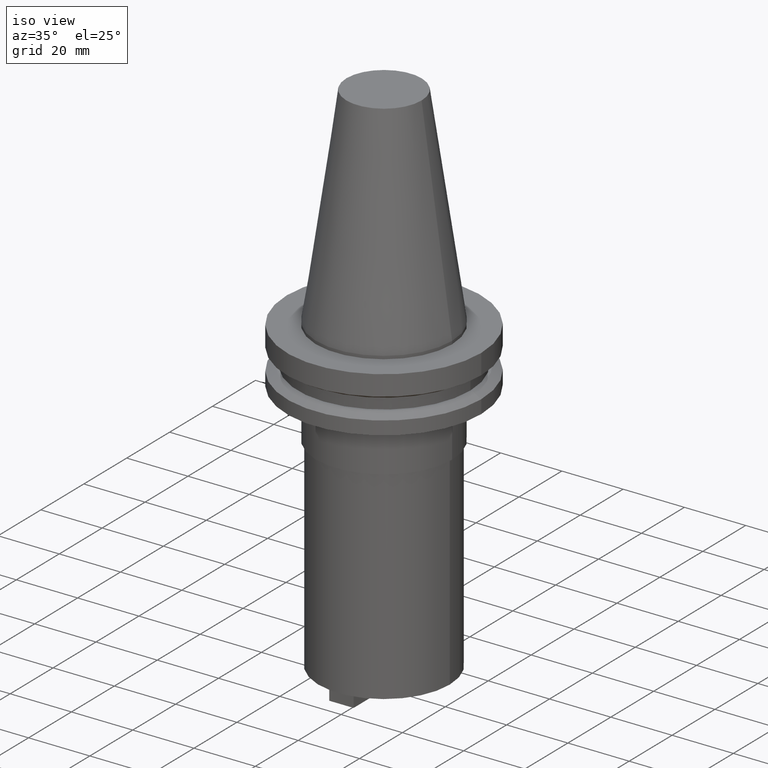
[diagram: clean part render]
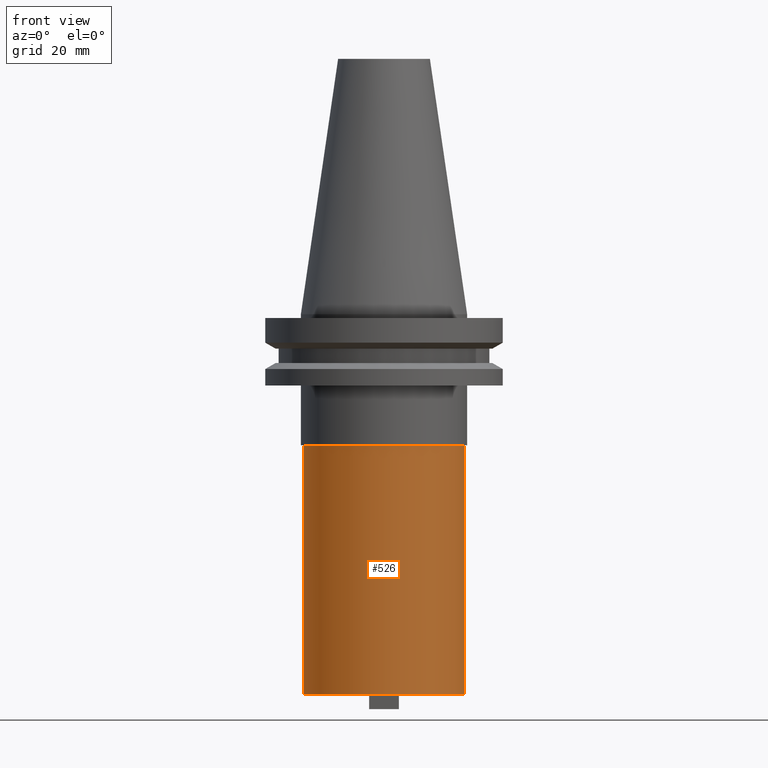
[diagram: tour spotlight — one face highlighted and labeled with its STEP entity id]
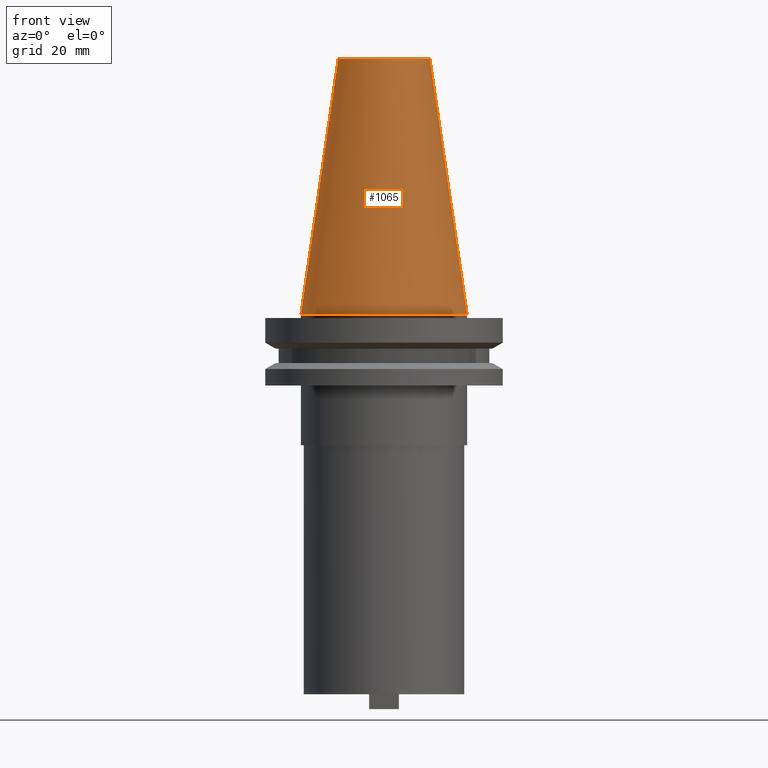
[diagram: tour spotlight — one face highlighted and labeled with its STEP entity id]
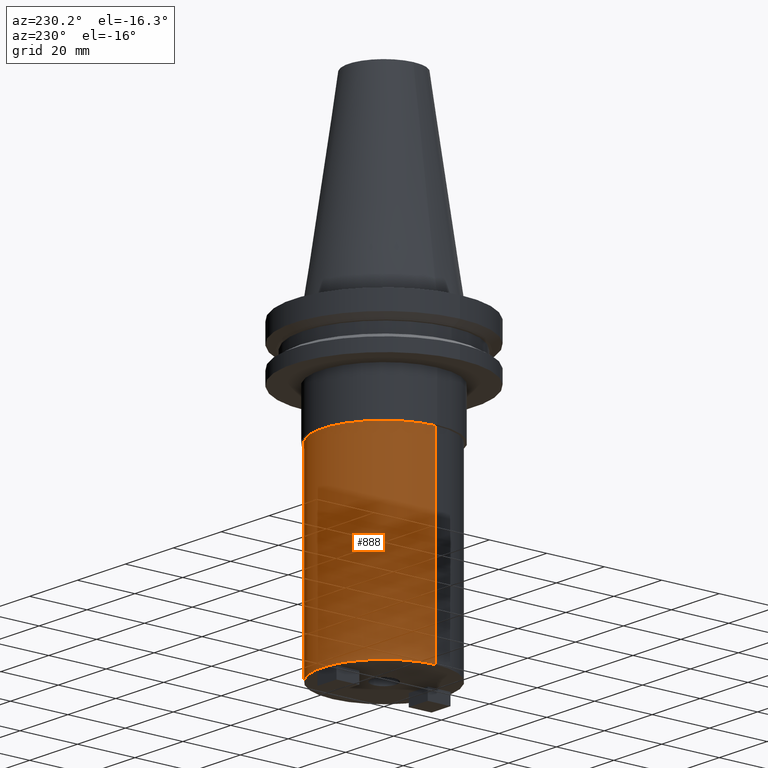
[diagram: tour spotlight — one face highlighted and labeled with its STEP entity id]
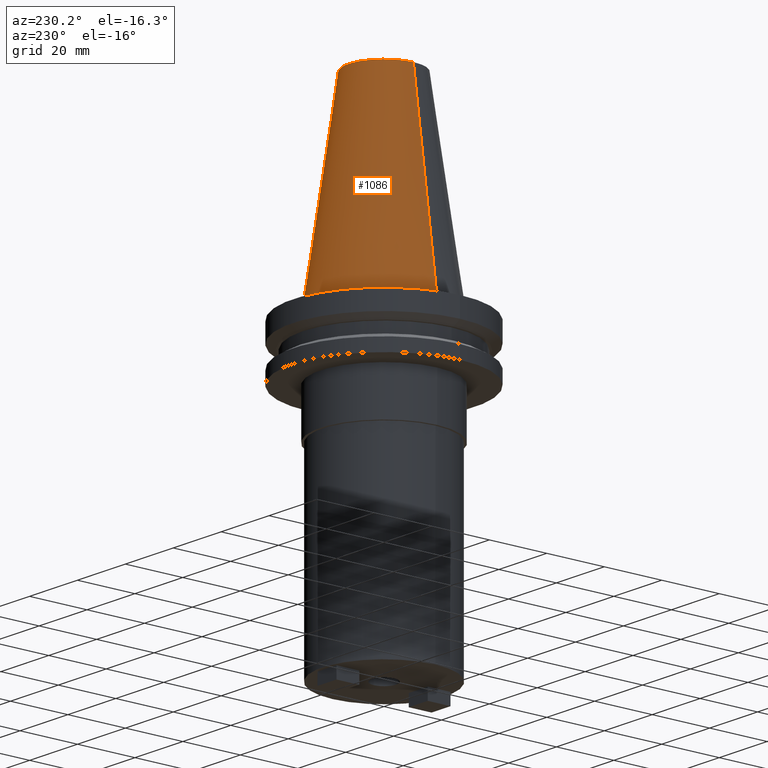
[diagram: tour spotlight — one face highlighted and labeled with its STEP entity id]
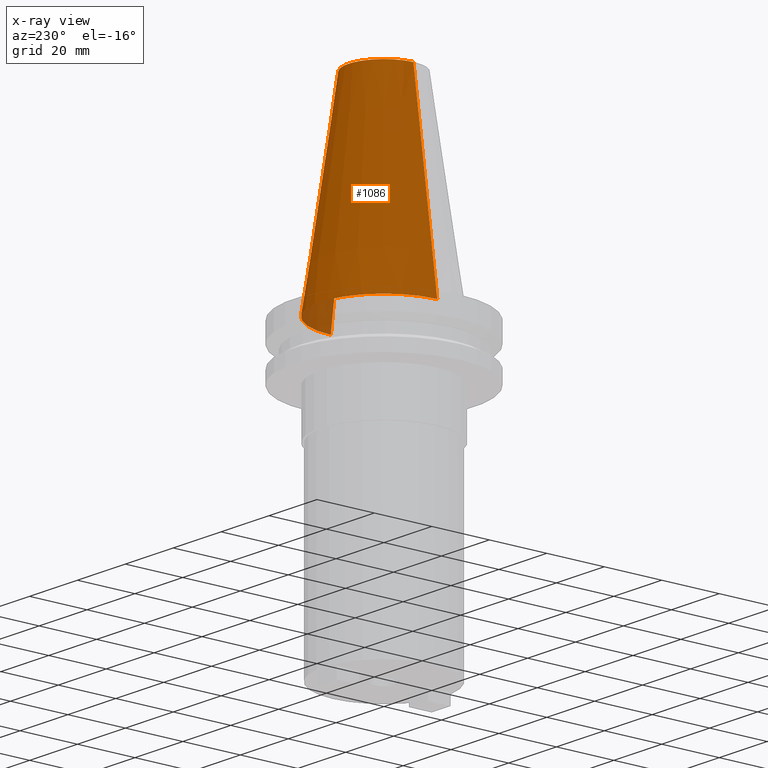
[diagram: x-ray of the same camera — body ghosted, this tour face saturated]
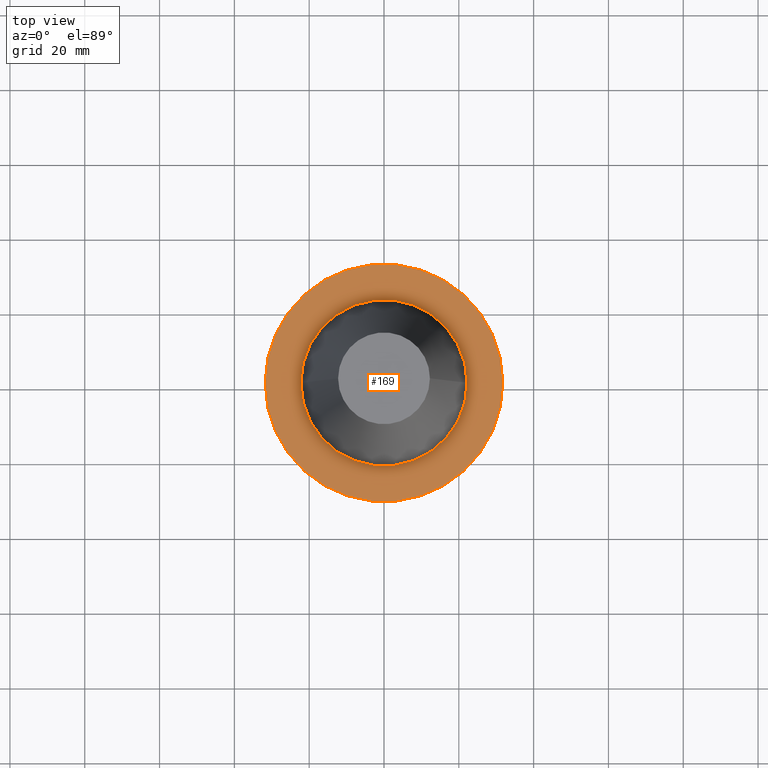
[diagram: tour spotlight — one face highlighted and labeled with its STEP entity id]
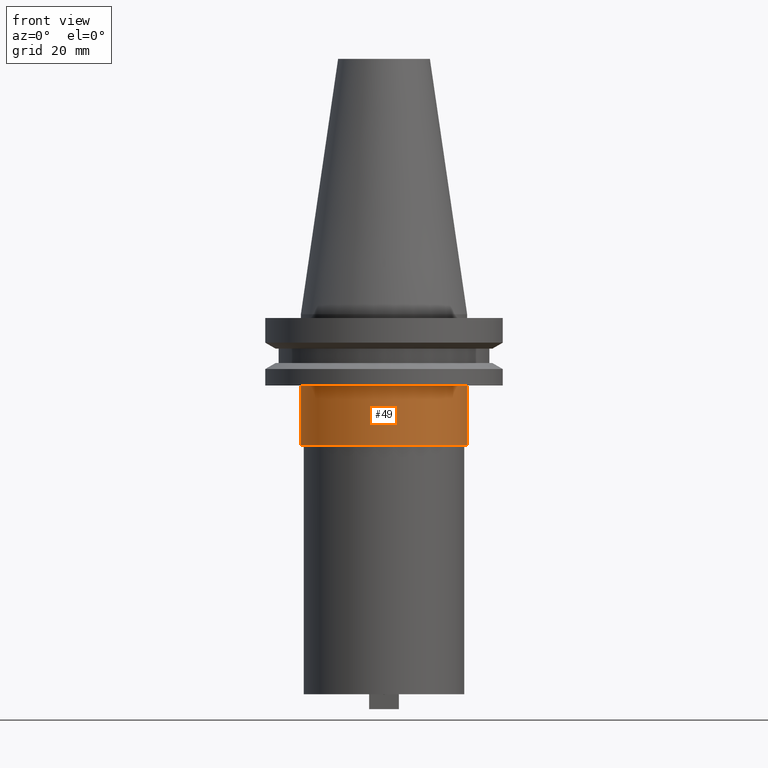
[diagram: tour spotlight — one face highlighted and labeled with its STEP entity id]
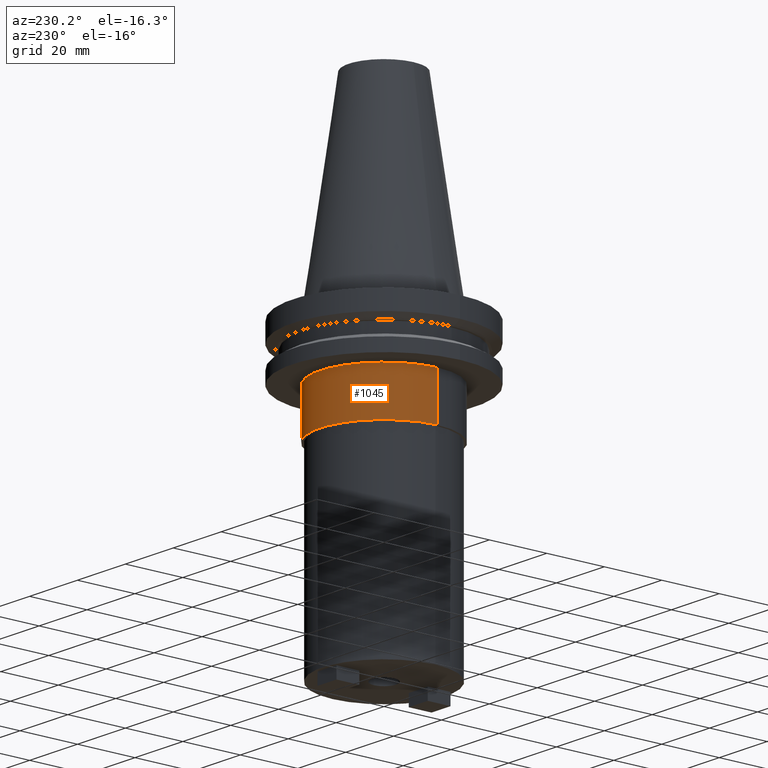
[diagram: tour spotlight — one face highlighted and labeled with its STEP entity id]
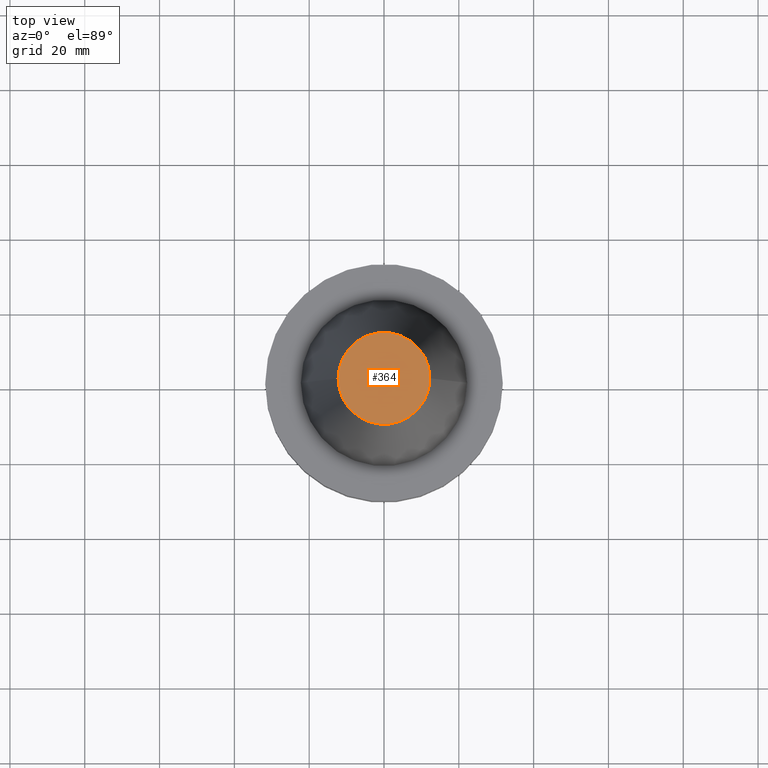
[diagram: tour spotlight — one face highlighted and labeled with its STEP entity id]
A machine part: a face-by-face anatomy tour. The part has 38 B-rep faces; the first image is the clean iso view, then the 8 largest visible faces are spotlighted one at a time (largest first), each with its STEP entity span.

Face 1 — front view, entity #526. In plain terms, the highlighted cylindrical surface (partial cylindrical patch) has radius 21.45 mm, axis along (-0, -0, 1).
Definition (entity closure, byte-faithful):
#9 = ORIENTED_EDGE ( 'NONE', *, *, #193, .T. ) ;
#55 = AXIS2_PLACEMENT_3D ( 'NONE', #59, #805, #411 ) ;
#59 = CARTESIAN_POINT ( 'NONE',  ( 0.000000000000000000, 0.000000000000000000, -101.5999999999999943 ) ) ;
#102 = ORIENTED_EDGE ( 'NONE', *, *, #778, .T. ) ;
#122 = ORIENTED_EDGE ( 'NONE', *, *, #743, .F. ) ;
#168 = CARTESIAN_POINT ( 'NONE',  ( 0.000000000000000000, 0.000000000000000000, -35.04999999999999716 ) ) ;
#193 = EDGE_CURVE ( 'NONE', #362, #834, #612, .T. ) ;
#292 = FACE_OUTER_BOUND ( 'NONE', #997, .T. ) ;
#323 = CARTESIAN_POINT ( 'NONE',  ( -21.44999999999999929, 2.626867384171072557E-15, -101.5999999999999943 ) ) ;
#362 = VERTEX_POINT ( 'NONE', #938 ) ;
#411 = DIRECTION ( 'NONE',  ( 1.000000000000000000, 0.000000000000000000, 0.000000000000000000 ) ) ;
#492 = LINE ( 'NONE', #893, #984 ) ;
#526 = ADVANCED_FACE ( 'NONE', ( #292 ), #552, .T. ) ;
#552 = CYLINDRICAL_SURFACE ( 'NONE', #614, 21.44999999999999929 ) ;
#597 = VERTEX_POINT ( 'NONE', #323 ) ;
#612 = CIRCLE ( 'NONE', #856, 21.44999999999999929 ) ;
#614 = AXIS2_PLACEMENT_3D ( 'NONE', #619, #688, #958 ) ;
#619 = CARTESIAN_POINT ( 'NONE',  ( 0.000000000000000000, 0.000000000000000000, 0.000000000000000000 ) ) ;
#645 = DIRECTION ( 'NONE',  ( 0.000000000000000000, 0.000000000000000000, -1.000000000000000000 ) ) ;
#679 = ORIENTED_EDGE ( 'NONE', *, *, #695, .T. ) ;
#685 = VERTEX_POINT ( 'NONE', #1001 ) ;
#688 = DIRECTION ( 'NONE',  ( -0.000000000000000000, -0.000000000000000000, 1.000000000000000000 ) ) ;
#695 = EDGE_CURVE ( 'NONE', #685, #362, #713, .T. ) ;
#708 = CIRCLE ( 'NONE', #55, 21.44999999999999929 ) ;
#713 = LINE ( 'NONE', #1075, #839 ) ;
#743 = EDGE_CURVE ( 'NONE', #597, #834, #492, .T. ) ;
#778 = EDGE_CURVE ( 'NONE', #597, #685, #708, .T. ) ;
#805 = DIRECTION ( 'NONE',  ( -0.000000000000000000, -0.000000000000000000, 1.000000000000000000 ) ) ;
#834 = VERTEX_POINT ( 'NONE', #1008 ) ;
#839 = VECTOR ( 'NONE', #1063, 1000.000000000000000 ) ;
#856 = AXIS2_PLACEMENT_3D ( 'NONE', #168, #645, #898 ) ;
#893 = CARTESIAN_POINT ( 'NONE',  ( -21.44999999999999929, 2.626867384171072557E-15, 0.000000000000000000 ) ) ;
#898 = DIRECTION ( 'NONE',  ( 1.000000000000000000, 0.000000000000000000, 0.000000000000000000 ) ) ;
#938 = CARTESIAN_POINT ( 'NONE',  ( 21.44999999999999929, 0.000000000000000000, -35.04999999999999716 ) ) ;
#958 = DIRECTION ( 'NONE',  ( 1.000000000000000000, 0.000000000000000000, 0.000000000000000000 ) ) ;
#984 = VECTOR ( 'NONE', #1066, 1000.000000000000000 ) ;
#997 = EDGE_LOOP ( 'NONE', ( #122, #102, #679, #9 ) ) ;
#1001 = CARTESIAN_POINT ( 'NONE',  ( 21.44999999999999929, 0.000000000000000000, -101.5999999999999943 ) ) ;
#1008 = CARTESIAN_POINT ( 'NONE',  ( -21.44999999999999929, 2.626867384171072557E-15, -35.04999999999999716 ) ) ;
#1063 = DIRECTION ( 'NONE',  ( -0.000000000000000000, -0.000000000000000000, 1.000000000000000000 ) ) ;
#1066 = DIRECTION ( 'NONE',  ( -0.000000000000000000, -0.000000000000000000, 1.000000000000000000 ) ) ;
#1075 = CARTESIAN_POINT ( 'NONE',  ( 21.44999999999999929, 0.000000000000000000, 0.000000000000000000 ) ) ;

Face 2 — front view, entity #1065. In plain terms, the highlighted conical surface has half-angle 8.297 deg.
Definition (entity closure, byte-faithful):
#114 = CIRCLE ( 'NONE', #138, 22.22500000000000142 ) ;
#137 = DIRECTION ( 'NONE',  ( -0.1443082272672999711, 0.000000000000000000, -0.9895327864921755756 ) ) ;
#138 = AXIS2_PLACEMENT_3D ( 'NONE', #994, #1059, #301 ) ;
#141 = CARTESIAN_POINT ( 'NONE',  ( 22.22500000000000142, 2.721777511104992849E-15, 0.000000000000000000 ) ) ;
#147 = LINE ( 'NONE', #401, #353 ) ;
#166 = VERTEX_POINT ( 'NONE', #141 ) ;
#228 = EDGE_CURVE ( 'NONE', #513, #1019, #298, .T. ) ;
#298 = CIRCLE ( 'NONE', #427, 12.27178102086201150 ) ;
#301 = DIRECTION ( 'NONE',  ( 1.000000000000000000, 0.000000000000000000, 0.000000000000000000 ) ) ;
#322 = EDGE_LOOP ( 'NONE', ( #486, #451, #687, #1050 ) ) ;
#353 = VECTOR ( 'NONE', #821, 999.9999999999998863 ) ;
#380 = CARTESIAN_POINT ( 'NONE',  ( 12.27178102086201150, 2.112318622904291439E-15, 68.25000000000000000 ) ) ;
#401 = CARTESIAN_POINT ( 'NONE',  ( 22.22500000000000142, 2.721777511104992849E-15, 0.000000000000000000 ) ) ;
#427 = AXIS2_PLACEMENT_3D ( 'NONE', #1076, #748, #579 ) ;
#437 = EDGE_CURVE ( 'NONE', #513, #998, #632, .T. ) ;
#451 = ORIENTED_EDGE ( 'NONE', *, *, #228, .F. ) ;
#486 = ORIENTED_EDGE ( 'NONE', *, *, #768, .F. ) ;
#513 = VERTEX_POINT ( 'NONE', #955 ) ;
#579 = DIRECTION ( 'NONE',  ( 1.000000000000000000, 0.000000000000000000, 0.000000000000000000 ) ) ;
#632 = LINE ( 'NONE', #1058, #1073 ) ;
#635 = DIRECTION ( 'NONE',  ( 0.000000000000000000, 0.000000000000000000, -1.000000000000000000 ) ) ;
#646 = FACE_OUTER_BOUND ( 'NONE', #322, .T. ) ;
#687 = ORIENTED_EDGE ( 'NONE', *, *, #437, .T. ) ;
#748 = DIRECTION ( 'NONE',  ( -0.000000000000000000, -0.000000000000000000, 1.000000000000000000 ) ) ;
#768 = EDGE_CURVE ( 'NONE', #1019, #166, #147, .T. ) ;
#790 = EDGE_CURVE ( 'NONE', #998, #166, #114, .T. ) ;
#821 = DIRECTION ( 'NONE',  ( 0.1443082272672999711, 1.767266086135276757E-17, -0.9895327864921755756 ) ) ;
#876 = CARTESIAN_POINT ( 'NONE',  ( -22.22500000000000142, 0.000000000000000000, 0.000000000000000000 ) ) ;
#915 = CARTESIAN_POINT ( 'NONE',  ( 0.000000000000000000, 0.000000000000000000, 0.000000000000000000 ) ) ;
#953 = AXIS2_PLACEMENT_3D ( 'NONE', #915, #635, #989 ) ;
#955 = CARTESIAN_POINT ( 'NONE',  ( -12.27178102086201150, 0.000000000000000000, 68.25000000000000000 ) ) ;
#989 = DIRECTION ( 'NONE',  ( -1.000000000000000000, 0.000000000000000000, 0.000000000000000000 ) ) ;
#994 = CARTESIAN_POINT ( 'NONE',  ( 0.000000000000000000, 0.000000000000000000, 0.000000000000000000 ) ) ;
#998 = VERTEX_POINT ( 'NONE', #876 ) ;
#1019 = VERTEX_POINT ( 'NONE', #380 ) ;
#1042 = CONICAL_SURFACE ( 'NONE', #953, 22.22500000000000142, 0.1448138465474119174 ) ;
#1050 = ORIENTED_EDGE ( 'NONE', *, *, #790, .T. ) ;
#1058 = CARTESIAN_POINT ( 'NONE',  ( -22.22500000000000142, 0.000000000000000000, 0.000000000000000000 ) ) ;
#1059 = DIRECTION ( 'NONE',  ( -0.000000000000000000, -0.000000000000000000, 1.000000000000000000 ) ) ;
#1065 = ADVANCED_FACE ( 'NONE', ( #646 ), #1042, .T. ) ;
#1073 = VECTOR ( 'NONE', #137, 999.9999999999998863 ) ;
#1076 = CARTESIAN_POINT ( 'NONE',  ( 0.000000000000000000, 0.000000000000000000, 68.25000000000000000 ) ) ;

Face 3 — auxiliary view, entity #888. In plain terms, the highlighted cylindrical surface (partial cylindrical patch) has radius 21.45 mm, axis along (-0, -0, 1).
Definition (entity closure, byte-faithful):
#39 = DIRECTION ( 'NONE',  ( 1.000000000000000000, 0.000000000000000000, 0.000000000000000000 ) ) ;
#69 = EDGE_CURVE ( 'NONE', #685, #597, #140, .T. ) ;
#74 = ORIENTED_EDGE ( 'NONE', *, *, #171, .T. ) ;
#140 = CIRCLE ( 'NONE', #929, 21.44999999999999929 ) ;
#155 = DIRECTION ( 'NONE',  ( -0.000000000000000000, -0.000000000000000000, 1.000000000000000000 ) ) ;
#165 = ORIENTED_EDGE ( 'NONE', *, *, #695, .F. ) ;
#171 = EDGE_CURVE ( 'NONE', #834, #362, #270, .T. ) ;
#185 = ORIENTED_EDGE ( 'NONE', *, *, #743, .T. ) ;
#270 = CIRCLE ( 'NONE', #578, 21.44999999999999929 ) ;
#317 = CARTESIAN_POINT ( 'NONE',  ( 0.000000000000000000, 0.000000000000000000, -35.04999999999999716 ) ) ;
#323 = CARTESIAN_POINT ( 'NONE',  ( -21.44999999999999929, 2.626867384171072557E-15, -101.5999999999999943 ) ) ;
#362 = VERTEX_POINT ( 'NONE', #938 ) ;
#435 = FACE_OUTER_BOUND ( 'NONE', #872, .T. ) ;
#463 = DIRECTION ( 'NONE',  ( -0.000000000000000000, -0.000000000000000000, 1.000000000000000000 ) ) ;
#489 = DIRECTION ( 'NONE',  ( 1.000000000000000000, 0.000000000000000000, 0.000000000000000000 ) ) ;
#492 = LINE ( 'NONE', #893, #984 ) ;
#557 = AXIS2_PLACEMENT_3D ( 'NONE', #1023, #155, #489 ) ;
#578 = AXIS2_PLACEMENT_3D ( 'NONE', #317, #988, #903 ) ;
#597 = VERTEX_POINT ( 'NONE', #323 ) ;
#603 = ORIENTED_EDGE ( 'NONE', *, *, #69, .T. ) ;
#620 = CARTESIAN_POINT ( 'NONE',  ( 0.000000000000000000, 0.000000000000000000, -101.5999999999999943 ) ) ;
#685 = VERTEX_POINT ( 'NONE', #1001 ) ;
#695 = EDGE_CURVE ( 'NONE', #685, #362, #713, .T. ) ;
#713 = LINE ( 'NONE', #1075, #839 ) ;
#743 = EDGE_CURVE ( 'NONE', #597, #834, #492, .T. ) ;
#834 = VERTEX_POINT ( 'NONE', #1008 ) ;
#839 = VECTOR ( 'NONE', #1063, 1000.000000000000000 ) ;
#872 = EDGE_LOOP ( 'NONE', ( #603, #185, #74, #165 ) ) ;
#888 = ADVANCED_FACE ( 'NONE', ( #435 ), #999, .T. ) ;
#893 = CARTESIAN_POINT ( 'NONE',  ( -21.44999999999999929, 2.626867384171072557E-15, 0.000000000000000000 ) ) ;
#903 = DIRECTION ( 'NONE',  ( 1.000000000000000000, 0.000000000000000000, 0.000000000000000000 ) ) ;
#929 = AXIS2_PLACEMENT_3D ( 'NONE', #620, #463, #39 ) ;
#938 = CARTESIAN_POINT ( 'NONE',  ( 21.44999999999999929, 0.000000000000000000, -35.04999999999999716 ) ) ;
#984 = VECTOR ( 'NONE', #1066, 1000.000000000000000 ) ;
#988 = DIRECTION ( 'NONE',  ( 0.000000000000000000, 0.000000000000000000, -1.000000000000000000 ) ) ;
#999 = CYLINDRICAL_SURFACE ( 'NONE', #557, 21.44999999999999929 ) ;
#1001 = CARTESIAN_POINT ( 'NONE',  ( 21.44999999999999929, 0.000000000000000000, -101.5999999999999943 ) ) ;
#1008 = CARTESIAN_POINT ( 'NONE',  ( -21.44999999999999929, 2.626867384171072557E-15, -35.04999999999999716 ) ) ;
#1023 = CARTESIAN_POINT ( 'NONE',  ( 0.000000000000000000, 0.000000000000000000, 0.000000000000000000 ) ) ;
#1063 = DIRECTION ( 'NONE',  ( -0.000000000000000000, -0.000000000000000000, 1.000000000000000000 ) ) ;
#1066 = DIRECTION ( 'NONE',  ( -0.000000000000000000, -0.000000000000000000, 1.000000000000000000 ) ) ;
#1075 = CARTESIAN_POINT ( 'NONE',  ( 21.44999999999999929, 0.000000000000000000, 0.000000000000000000 ) ) ;

Face 4 — auxiliary view, entity #1086. An x-ray twin of the same camera follows (body ghosted, this face saturated) — the face is partly hidden behind the body. In plain terms, the highlighted conical surface has half-angle 8.297 deg.
Definition (entity closure, byte-faithful):
#61 = FACE_OUTER_BOUND ( 'NONE', #658, .T. ) ;
#71 = CARTESIAN_POINT ( 'NONE',  ( 0.000000000000000000, 0.000000000000000000, 0.000000000000000000 ) ) ;
#137 = DIRECTION ( 'NONE',  ( -0.1443082272672999711, 0.000000000000000000, -0.9895327864921755756 ) ) ;
#141 = CARTESIAN_POINT ( 'NONE',  ( 22.22500000000000142, 2.721777511104992849E-15, 0.000000000000000000 ) ) ;
#147 = LINE ( 'NONE', #401, #353 ) ;
#166 = VERTEX_POINT ( 'NONE', #141 ) ;
#167 = DIRECTION ( 'NONE',  ( -0.000000000000000000, -0.000000000000000000, 1.000000000000000000 ) ) ;
#250 = CIRCLE ( 'NONE', #705, 22.22500000000000142 ) ;
#255 = ORIENTED_EDGE ( 'NONE', *, *, #662, .T. ) ;
#353 = VECTOR ( 'NONE', #821, 999.9999999999998863 ) ;
#380 = CARTESIAN_POINT ( 'NONE',  ( 12.27178102086201150, 2.112318622904291439E-15, 68.25000000000000000 ) ) ;
#395 = DIRECTION ( 'NONE',  ( -0.000000000000000000, -0.000000000000000000, 1.000000000000000000 ) ) ;
#401 = CARTESIAN_POINT ( 'NONE',  ( 22.22500000000000142, 2.721777511104992849E-15, 0.000000000000000000 ) ) ;
#404 = CIRCLE ( 'NONE', #1025, 12.27178102086201150 ) ;
#437 = EDGE_CURVE ( 'NONE', #513, #998, #632, .T. ) ;
#513 = VERTEX_POINT ( 'NONE', #955 ) ;
#570 = CARTESIAN_POINT ( 'NONE',  ( 0.000000000000000000, 0.000000000000000000, 0.000000000000000000 ) ) ;
#584 = ORIENTED_EDGE ( 'NONE', *, *, #757, .F. ) ;
#632 = LINE ( 'NONE', #1058, #1073 ) ;
#643 = CARTESIAN_POINT ( 'NONE',  ( 0.000000000000000000, 0.000000000000000000, 68.25000000000000000 ) ) ;
#658 = EDGE_LOOP ( 'NONE', ( #584, #1062, #255, #1014 ) ) ;
#662 = EDGE_CURVE ( 'NONE', #166, #998, #250, .T. ) ;
#665 = CONICAL_SURFACE ( 'NONE', #820, 22.22500000000000142, 0.1448138465474119174 ) ;
#705 = AXIS2_PLACEMENT_3D ( 'NONE', #570, #167, #1081 ) ;
#719 = DIRECTION ( 'NONE',  ( 1.000000000000000000, 0.000000000000000000, 0.000000000000000000 ) ) ;
#722 = DIRECTION ( 'NONE',  ( -1.000000000000000000, 0.000000000000000000, 0.000000000000000000 ) ) ;
#730 = DIRECTION ( 'NONE',  ( 0.000000000000000000, 0.000000000000000000, -1.000000000000000000 ) ) ;
#757 = EDGE_CURVE ( 'NONE', #1019, #513, #404, .T. ) ;
#768 = EDGE_CURVE ( 'NONE', #1019, #166, #147, .T. ) ;
#820 = AXIS2_PLACEMENT_3D ( 'NONE', #71, #730, #722 ) ;
#821 = DIRECTION ( 'NONE',  ( 0.1443082272672999711, 1.767266086135276757E-17, -0.9895327864921755756 ) ) ;
#876 = CARTESIAN_POINT ( 'NONE',  ( -22.22500000000000142, 0.000000000000000000, 0.000000000000000000 ) ) ;
#955 = CARTESIAN_POINT ( 'NONE',  ( -12.27178102086201150, 0.000000000000000000, 68.25000000000000000 ) ) ;
#998 = VERTEX_POINT ( 'NONE', #876 ) ;
#1014 = ORIENTED_EDGE ( 'NONE', *, *, #437, .F. ) ;
#1019 = VERTEX_POINT ( 'NONE', #380 ) ;
#1025 = AXIS2_PLACEMENT_3D ( 'NONE', #643, #395, #719 ) ;
#1058 = CARTESIAN_POINT ( 'NONE',  ( -22.22500000000000142, 0.000000000000000000, 0.000000000000000000 ) ) ;
#1062 = ORIENTED_EDGE ( 'NONE', *, *, #768, .T. ) ;
#1073 = VECTOR ( 'NONE', #137, 999.9999999999998863 ) ;
#1081 = DIRECTION ( 'NONE',  ( 1.000000000000000000, 0.000000000000000000, 0.000000000000000000 ) ) ;
#1086 = ADVANCED_FACE ( 'NONE', ( #61 ), #665, .T. ) ;

Face 5 — top view, entity #169. In plain terms, the highlighted planar face has unit normal (0, 0, -1).
Definition (entity closure, byte-faithful):
#5 = AXIS2_PLACEMENT_3D ( 'NONE', #313, #535, #330 ) ;
#28 = DIRECTION ( 'NONE',  ( 1.000000000000000000, 0.000000000000000000, 0.000000000000000000 ) ) ;
#60 = FACE_BOUND ( 'NONE', #877, .T. ) ;
#86 = VERTEX_POINT ( 'NONE', #969 ) ;
#100 = CARTESIAN_POINT ( 'NONE',  ( 0.000000000000000000, 0.000000000000000000, -1.000000000000000888 ) ) ;
#164 = CARTESIAN_POINT ( 'NONE',  ( 22.22500000000000142, 0.000000000000000000, -1.000000000000000888 ) ) ;
#169 = ADVANCED_FACE ( 'NONE', ( #60, #391 ), #1067, .F. ) ;
#217 = CARTESIAN_POINT ( 'NONE',  ( 31.75000000000000000, 0.000000000000000000, -1.000000000000000888 ) ) ;
#222 = CARTESIAN_POINT ( 'NONE',  ( 0.000000000000000000, 0.000000000000000000, -1.000000000000000888 ) ) ;
#260 = VERTEX_POINT ( 'NONE', #164 ) ;
#277 = EDGE_CURVE ( 'NONE', #956, #991, #558, .T. ) ;
#290 = EDGE_CURVE ( 'NONE', #260, #86, #400, .T. ) ;
#313 = CARTESIAN_POINT ( 'NONE',  ( 0.000000000000000000, 31.75000000000000000, -0.9999999999999995559 ) ) ;
#330 = DIRECTION ( 'NONE',  ( -1.000000000000000000, 0.000000000000000000, -0.000000000000000000 ) ) ;
#334 = DIRECTION ( 'NONE',  ( -0.000000000000000000, -0.000000000000000000, 1.000000000000000000 ) ) ;
#357 = ORIENTED_EDGE ( 'NONE', *, *, #1064, .T. ) ;
#367 = ORIENTED_EDGE ( 'NONE', *, *, #967, .F. ) ;
#391 = FACE_OUTER_BOUND ( 'NONE', #867, .T. ) ;
#397 = DIRECTION ( 'NONE',  ( -0.000000000000000000, -0.000000000000000000, 1.000000000000000000 ) ) ;
#400 = CIRCLE ( 'NONE', #1024, 22.22500000000000142 ) ;
#441 = DIRECTION ( 'NONE',  ( 1.000000000000000000, 0.000000000000000000, 0.000000000000000000 ) ) ;
#477 = DIRECTION ( 'NONE',  ( 1.000000000000000000, 0.000000000000000000, 0.000000000000000000 ) ) ;
#535 = DIRECTION ( 'NONE',  ( 0.000000000000000000, 0.000000000000000000, -1.000000000000000000 ) ) ;
#547 = CARTESIAN_POINT ( 'NONE',  ( -31.75000000000000000, 3.888253587292846476E-15, -1.000000000000000888 ) ) ;
#558 = CIRCLE ( 'NONE', #1007, 31.75000000000000000 ) ;
#589 = DIRECTION ( 'NONE',  ( -0.000000000000000000, -0.000000000000000000, 1.000000000000000000 ) ) ;
#664 = DIRECTION ( 'NONE',  ( 1.000000000000000000, 0.000000000000000000, 0.000000000000000000 ) ) ;
#786 = CARTESIAN_POINT ( 'NONE',  ( 0.000000000000000000, 0.000000000000000000, -1.000000000000000888 ) ) ;
#803 = ORIENTED_EDGE ( 'NONE', *, *, #290, .F. ) ;
#836 = CARTESIAN_POINT ( 'NONE',  ( 0.000000000000000000, 0.000000000000000000, -1.000000000000000888 ) ) ;
#841 = CIRCLE ( 'NONE', #1037, 31.75000000000000000 ) ;
#858 = ORIENTED_EDGE ( 'NONE', *, *, #277, .T. ) ;
#867 = EDGE_LOOP ( 'NONE', ( #357, #858 ) ) ;
#877 = EDGE_LOOP ( 'NONE', ( #803, #367 ) ) ;
#891 = CIRCLE ( 'NONE', #911, 22.22500000000000142 ) ;
#911 = AXIS2_PLACEMENT_3D ( 'NONE', #786, #1031, #441 ) ;
#956 = VERTEX_POINT ( 'NONE', #547 ) ;
#967 = EDGE_CURVE ( 'NONE', #86, #260, #891, .T. ) ;
#969 = CARTESIAN_POINT ( 'NONE',  ( -22.22500000000000142, 2.721777511104992849E-15, -1.000000000000000888 ) ) ;
#991 = VERTEX_POINT ( 'NONE', #217 ) ;
#1007 = AXIS2_PLACEMENT_3D ( 'NONE', #836, #334, #664 ) ;
#1024 = AXIS2_PLACEMENT_3D ( 'NONE', #100, #589, #28 ) ;
#1031 = DIRECTION ( 'NONE',  ( -0.000000000000000000, -0.000000000000000000, 1.000000000000000000 ) ) ;
#1037 = AXIS2_PLACEMENT_3D ( 'NONE', #222, #397, #477 ) ;
#1064 = EDGE_CURVE ( 'NONE', #991, #956, #841, .T. ) ;
#1067 = PLANE ( 'NONE',  #5 ) ;

Face 6 — front view, entity #49. In plain terms, the highlighted cylindrical surface (partial cylindrical patch) has radius 22.225 mm, axis along (-0, -0, 1).
Definition (entity closure, byte-faithful):
#26 = EDGE_CURVE ( 'NONE', #236, #1079, #746, .T. ) ;
#49 = ADVANCED_FACE ( 'NONE', ( #131 ), #379, .T. ) ;
#64 = DIRECTION ( 'NONE',  ( 1.000000000000000000, 0.000000000000000000, 0.000000000000000000 ) ) ;
#95 = AXIS2_PLACEMENT_3D ( 'NONE', #669, #563, #64 ) ;
#104 = DIRECTION ( 'NONE',  ( -0.000000000000000000, -0.000000000000000000, 1.000000000000000000 ) ) ;
#125 = AXIS2_PLACEMENT_3D ( 'NONE', #780, #540, #866 ) ;
#131 = FACE_OUTER_BOUND ( 'NONE', #573, .T. ) ;
#197 = AXIS2_PLACEMENT_3D ( 'NONE', #689, #933, #528 ) ;
#236 = VERTEX_POINT ( 'NONE', #424 ) ;
#282 = EDGE_CURVE ( 'NONE', #483, #752, #869, .T. ) ;
#379 = CYLINDRICAL_SURFACE ( 'NONE', #125, 22.22500000000000142 ) ;
#419 = DIRECTION ( 'NONE',  ( -0.000000000000000000, -0.000000000000000000, 1.000000000000000000 ) ) ;
#424 = CARTESIAN_POINT ( 'NONE',  ( -22.22499999999999787, 2.721777511104992454E-15, -35.04999999999999716 ) ) ;
#425 = VECTOR ( 'NONE', #104, 1000.000000000000000 ) ;
#483 = VERTEX_POINT ( 'NONE', #1043 ) ;
#521 = ORIENTED_EDGE ( 'NONE', *, *, #282, .F. ) ;
#528 = DIRECTION ( 'NONE',  ( 1.000000000000000000, 0.000000000000000000, 0.000000000000000000 ) ) ;
#540 = DIRECTION ( 'NONE',  ( -0.000000000000000000, -0.000000000000000000, 1.000000000000000000 ) ) ;
#563 = DIRECTION ( 'NONE',  ( -0.000000000000000000, -0.000000000000000000, 1.000000000000000000 ) ) ;
#573 = EDGE_LOOP ( 'NONE', ( #774, #608, #1004, #521 ) ) ;
#608 = ORIENTED_EDGE ( 'NONE', *, *, #26, .T. ) ;
#639 = CARTESIAN_POINT ( 'NONE',  ( 22.22499999999999787, 0.000000000000000000, -35.04999999999999716 ) ) ;
#648 = EDGE_CURVE ( 'NONE', #236, #483, #1010, .T. ) ;
#669 = CARTESIAN_POINT ( 'NONE',  ( 0.000000000000000000, 0.000000000000000000, -19.04999999999999716 ) ) ;
#689 = CARTESIAN_POINT ( 'NONE',  ( 0.000000000000000000, 0.000000000000000000, -35.04999999999999716 ) ) ;
#710 = CARTESIAN_POINT ( 'NONE',  ( 22.22500000000000142, 0.000000000000000000, -19.04999999999999716 ) ) ;
#746 = CIRCLE ( 'NONE', #197, 22.22499999999999787 ) ;
#752 = VERTEX_POINT ( 'NONE', #710 ) ;
#774 = ORIENTED_EDGE ( 'NONE', *, *, #648, .F. ) ;
#780 = CARTESIAN_POINT ( 'NONE',  ( 0.000000000000000000, 0.000000000000000000, 68.25000000000000000 ) ) ;
#854 = LINE ( 'NONE', #960, #425 ) ;
#866 = DIRECTION ( 'NONE',  ( 1.000000000000000000, 0.000000000000000000, 0.000000000000000000 ) ) ;
#869 = CIRCLE ( 'NONE', #95, 22.22500000000000142 ) ;
#919 = CARTESIAN_POINT ( 'NONE',  ( -22.22500000000000142, 2.721777511104992849E-15, 68.25000000000000000 ) ) ;
#933 = DIRECTION ( 'NONE',  ( -0.000000000000000000, -0.000000000000000000, 1.000000000000000000 ) ) ;
#960 = CARTESIAN_POINT ( 'NONE',  ( 22.22500000000000142, 0.000000000000000000, 68.25000000000000000 ) ) ;
#1000 = EDGE_CURVE ( 'NONE', #1079, #752, #854, .T. ) ;
#1004 = ORIENTED_EDGE ( 'NONE', *, *, #1000, .T. ) ;
#1009 = VECTOR ( 'NONE', #419, 1000.000000000000000 ) ;
#1010 = LINE ( 'NONE', #919, #1009 ) ;
#1043 = CARTESIAN_POINT ( 'NONE',  ( -22.22500000000000142, 2.721777511104992849E-15, -19.04999999999999716 ) ) ;
#1079 = VERTEX_POINT ( 'NONE', #639 ) ;

Face 7 — auxiliary view, entity #1045. In plain terms, the highlighted cylindrical surface (partial cylindrical patch) has radius 22.225 mm, axis along (-0, -0, 1).
Definition (entity closure, byte-faithful):
#2 = AXIS2_PLACEMENT_3D ( 'NONE', #975, #65, #143 ) ;
#20 = AXIS2_PLACEMENT_3D ( 'NONE', #303, #870, #959 ) ;
#34 = EDGE_CURVE ( 'NONE', #752, #483, #529, .T. ) ;
#37 = EDGE_CURVE ( 'NONE', #1079, #236, #795, .T. ) ;
#43 = CARTESIAN_POINT ( 'NONE',  ( 0.000000000000000000, 0.000000000000000000, -19.04999999999999716 ) ) ;
#65 = DIRECTION ( 'NONE',  ( -0.000000000000000000, -0.000000000000000000, 1.000000000000000000 ) ) ;
#104 = DIRECTION ( 'NONE',  ( -0.000000000000000000, -0.000000000000000000, 1.000000000000000000 ) ) ;
#143 = DIRECTION ( 'NONE',  ( 1.000000000000000000, 0.000000000000000000, 0.000000000000000000 ) ) ;
#236 = VERTEX_POINT ( 'NONE', #424 ) ;
#303 = CARTESIAN_POINT ( 'NONE',  ( 0.000000000000000000, 0.000000000000000000, -35.04999999999999716 ) ) ;
#331 = ORIENTED_EDGE ( 'NONE', *, *, #1000, .F. ) ;
#336 = AXIS2_PLACEMENT_3D ( 'NONE', #43, #376, #476 ) ;
#343 = ORIENTED_EDGE ( 'NONE', *, *, #648, .T. ) ;
#354 = FACE_OUTER_BOUND ( 'NONE', #666, .T. ) ;
#376 = DIRECTION ( 'NONE',  ( -0.000000000000000000, -0.000000000000000000, 1.000000000000000000 ) ) ;
#419 = DIRECTION ( 'NONE',  ( -0.000000000000000000, -0.000000000000000000, 1.000000000000000000 ) ) ;
#424 = CARTESIAN_POINT ( 'NONE',  ( -22.22499999999999787, 2.721777511104992454E-15, -35.04999999999999716 ) ) ;
#425 = VECTOR ( 'NONE', #104, 1000.000000000000000 ) ;
#444 = ORIENTED_EDGE ( 'NONE', *, *, #34, .F. ) ;
#476 = DIRECTION ( 'NONE',  ( 1.000000000000000000, 0.000000000000000000, 0.000000000000000000 ) ) ;
#483 = VERTEX_POINT ( 'NONE', #1043 ) ;
#529 = CIRCLE ( 'NONE', #336, 22.22500000000000142 ) ;
#572 = CYLINDRICAL_SURFACE ( 'NONE', #2, 22.22500000000000142 ) ;
#639 = CARTESIAN_POINT ( 'NONE',  ( 22.22499999999999787, 0.000000000000000000, -35.04999999999999716 ) ) ;
#648 = EDGE_CURVE ( 'NONE', #236, #483, #1010, .T. ) ;
#666 = EDGE_LOOP ( 'NONE', ( #738, #343, #444, #331 ) ) ;
#710 = CARTESIAN_POINT ( 'NONE',  ( 22.22500000000000142, 0.000000000000000000, -19.04999999999999716 ) ) ;
#738 = ORIENTED_EDGE ( 'NONE', *, *, #37, .T. ) ;
#752 = VERTEX_POINT ( 'NONE', #710 ) ;
#795 = CIRCLE ( 'NONE', #20, 22.22499999999999787 ) ;
#854 = LINE ( 'NONE', #960, #425 ) ;
#870 = DIRECTION ( 'NONE',  ( -0.000000000000000000, -0.000000000000000000, 1.000000000000000000 ) ) ;
#919 = CARTESIAN_POINT ( 'NONE',  ( -22.22500000000000142, 2.721777511104992849E-15, 68.25000000000000000 ) ) ;
#959 = DIRECTION ( 'NONE',  ( 1.000000000000000000, 0.000000000000000000, 0.000000000000000000 ) ) ;
#960 = CARTESIAN_POINT ( 'NONE',  ( 22.22500000000000142, 0.000000000000000000, 68.25000000000000000 ) ) ;
#975 = CARTESIAN_POINT ( 'NONE',  ( 0.000000000000000000, 0.000000000000000000, 68.25000000000000000 ) ) ;
#1000 = EDGE_CURVE ( 'NONE', #1079, #752, #854, .T. ) ;
#1009 = VECTOR ( 'NONE', #419, 1000.000000000000000 ) ;
#1010 = LINE ( 'NONE', #919, #1009 ) ;
#1043 = CARTESIAN_POINT ( 'NONE',  ( -22.22500000000000142, 2.721777511104992849E-15, -19.04999999999999716 ) ) ;
#1045 = ADVANCED_FACE ( 'NONE', ( #354 ), #572, .T. ) ;
#1079 = VERTEX_POINT ( 'NONE', #639 ) ;

Face 8 — top view, entity #364. In plain terms, the highlighted planar face has unit normal (0, 0, -1).
Definition (entity closure, byte-faithful):
#228 = EDGE_CURVE ( 'NONE', #513, #1019, #298, .T. ) ;
#281 = PLANE ( 'NONE',  #818 ) ;
#298 = CIRCLE ( 'NONE', #427, 12.27178102086201150 ) ;
#364 = ADVANCED_FACE ( 'NONE', ( #520 ), #281, .F. ) ;
#380 = CARTESIAN_POINT ( 'NONE',  ( 12.27178102086201150, 2.112318622904291439E-15, 68.25000000000000000 ) ) ;
#395 = DIRECTION ( 'NONE',  ( -0.000000000000000000, -0.000000000000000000, 1.000000000000000000 ) ) ;
#404 = CIRCLE ( 'NONE', #1025, 12.27178102086201150 ) ;
#427 = AXIS2_PLACEMENT_3D ( 'NONE', #1076, #748, #579 ) ;
#455 = CARTESIAN_POINT ( 'NONE',  ( 0.000000000000000000, 12.27178102086201150, 68.25000000000000000 ) ) ;
#513 = VERTEX_POINT ( 'NONE', #955 ) ;
#520 = FACE_OUTER_BOUND ( 'NONE', #863, .T. ) ;
#522 = ORIENTED_EDGE ( 'NONE', *, *, #228, .T. ) ;
#579 = DIRECTION ( 'NONE',  ( 1.000000000000000000, 0.000000000000000000, 0.000000000000000000 ) ) ;
#643 = CARTESIAN_POINT ( 'NONE',  ( 0.000000000000000000, 0.000000000000000000, 68.25000000000000000 ) ) ;
#675 = DIRECTION ( 'NONE',  ( 0.000000000000000000, 0.000000000000000000, -1.000000000000000000 ) ) ;
#686 = DIRECTION ( 'NONE',  ( -1.000000000000000000, 0.000000000000000000, -0.000000000000000000 ) ) ;
#719 = DIRECTION ( 'NONE',  ( 1.000000000000000000, 0.000000000000000000, 0.000000000000000000 ) ) ;
#748 = DIRECTION ( 'NONE',  ( -0.000000000000000000, -0.000000000000000000, 1.000000000000000000 ) ) ;
#757 = EDGE_CURVE ( 'NONE', #1019, #513, #404, .T. ) ;
#818 = AXIS2_PLACEMENT_3D ( 'NONE', #455, #675, #686 ) ;
#863 = EDGE_LOOP ( 'NONE', ( #522, #917 ) ) ;
#917 = ORIENTED_EDGE ( 'NONE', *, *, #757, .T. ) ;
#955 = CARTESIAN_POINT ( 'NONE',  ( -12.27178102086201150, 0.000000000000000000, 68.25000000000000000 ) ) ;
#1019 = VERTEX_POINT ( 'NONE', #380 ) ;
#1025 = AXIS2_PLACEMENT_3D ( 'NONE', #643, #395, #719 ) ;
#1076 = CARTESIAN_POINT ( 'NONE',  ( 0.000000000000000000, 0.000000000000000000, 68.25000000000000000 ) ) ;